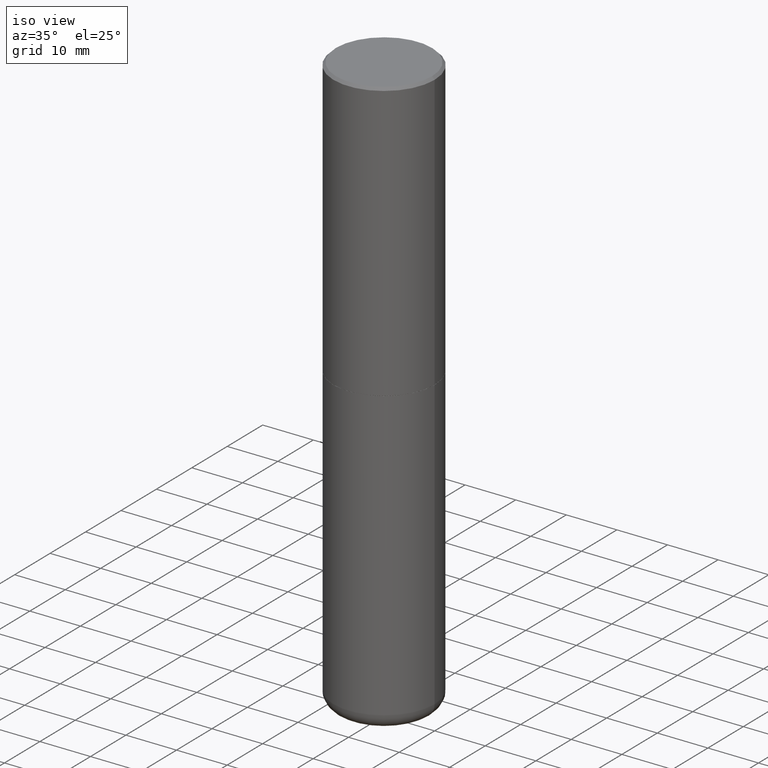
[diagram: clean part render]
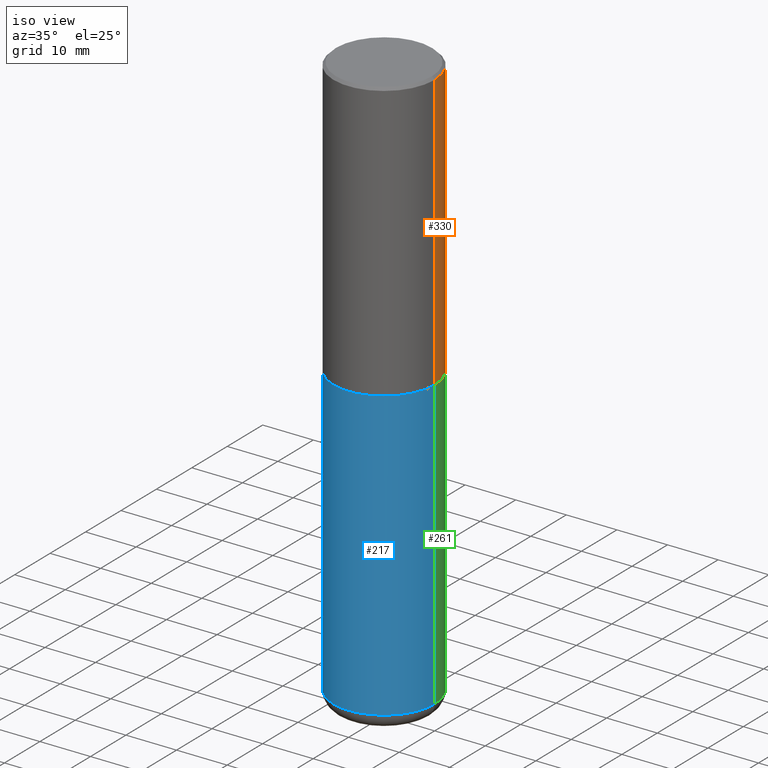
[diagram: same view with three faces highlighted in distinct colors, each labeled with its STEP entity id]
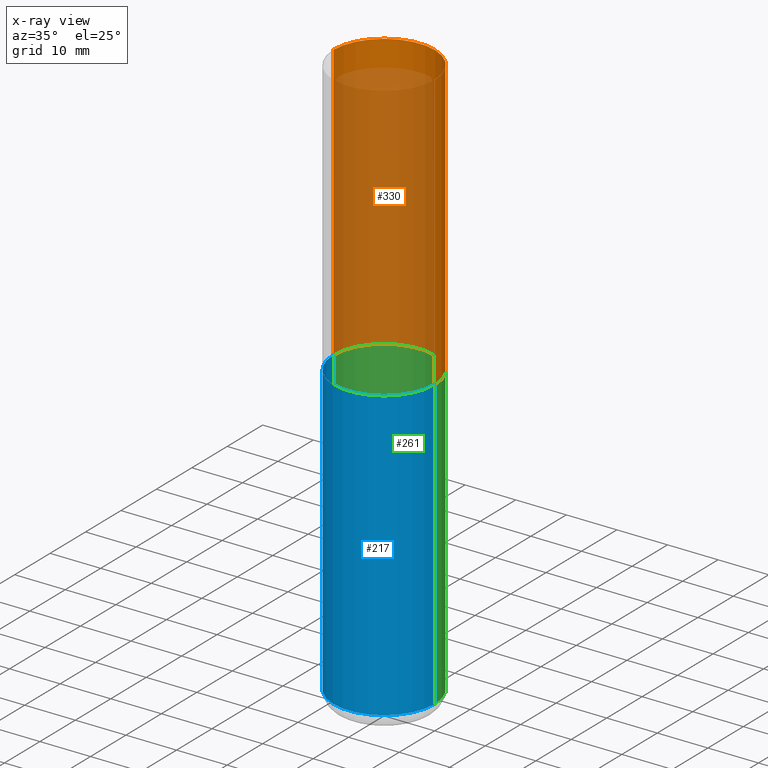
[diagram: x-ray of the same camera — body ghosted, the three highlighted faces saturated]
A machine part, iso view with three faces highlighted in distinct colors.
The next image is the same camera in x-ray (body ghosted, the three faces saturated) — at least one of them is partly hidden behind the body in this view.
Their STEP definitions:

[orange] entity #330 — the highlighted cylindrical surface (partial cylindrical patch) has radius 10 mm, axis along (-0, 0, 1).
#4 = ORIENTED_EDGE ( 'NONE', *, *, #326, .T. ) ;
#5 = EDGE_CURVE ( 'NONE', #162, #307, #29, .T. ) ;
#19 = VERTEX_POINT ( 'NONE', #332 ) ;
#29 = LINE ( 'NONE', #219, #386 ) ;
#48 = CARTESIAN_POINT ( 'NONE',  ( 4.890937612370294178E-31, -6.982962677686321191E-17, -0.02000000000000008715 ) ) ;
#53 = AXIS2_PLACEMENT_3D ( 'NONE', #137, #142, #274 ) ;
#63 = CARTESIAN_POINT ( 'NONE',  ( 0.3937000000000002720, -1.030615461599718763E-14, -2.164399999999999658 ) ) ;
#66 = CARTESIAN_POINT ( 'NONE',  ( 5.292972684107107621E-29, -7.556962209792102838E-15, -2.164399999999999658 ) ) ;
#137 = CARTESIAN_POINT ( 'NONE',  ( 0.000000000000000000, 0.000000000000000000, 0.000000000000000000 ) ) ;
#140 = EDGE_LOOP ( 'NONE', ( #4, #365, #396, #184 ) ) ;
#142 = DIRECTION ( 'NONE',  ( -2.445468806185136597E-29, 3.491481338843145583E-15, 1.000000000000000000 ) ) ;
#154 = DIRECTION ( 'NONE',  ( 1.000000000000000000, -6.982962677686266711E-15, 0.000000000000000000 ) ) ;
#162 = VERTEX_POINT ( 'NONE', #63 ) ;
#166 = DIRECTION ( 'NONE',  ( 1.000000000000000000, -6.982962677686269077E-15, 0.000000000000000000 ) ) ;
#168 = FACE_OUTER_BOUND ( 'NONE', #140, .T. ) ;
#177 = DIRECTION ( 'NONE',  ( -2.445468806185136597E-29, 3.491481338843145583E-15, 1.000000000000000000 ) ) ;
#178 = DIRECTION ( 'NONE',  ( -2.445468806185136597E-29, 3.491481338843145583E-15, 1.000000000000000000 ) ) ;
#184 = ORIENTED_EDGE ( 'NONE', *, *, #5, .F. ) ;
#188 = CARTESIAN_POINT ( 'NONE',  ( 0.3937000000000001054, -2.770807688499516128E-15, -0.02000000000000008715 ) ) ;
#210 = CIRCLE ( 'NONE', #379, 0.3937000000000001054 ) ;
#219 = CARTESIAN_POINT ( 'NONE',  ( 0.3937000000000002164, -2.749192406205084794E-15, 1.919750796630861012E-29 ) ) ;
#222 = CARTESIAN_POINT ( 'NONE',  ( -0.3937000000000002164, 2.797406750687515970E-15, -1.936584745033357576E-29 ) ) ;
#226 = EDGE_CURVE ( 'NONE', #388, #19, #403, .T. ) ;
#229 = CIRCLE ( 'NONE', #257, 0.3937000000000002720 ) ;
#252 = CARTESIAN_POINT ( 'NONE',  ( -0.3937000000000002720, -1.015989167596965718E-15, -2.164399999999999658 ) ) ;
#257 = AXIS2_PLACEMENT_3D ( 'NONE', #66, #178, #166 ) ;
#274 = DIRECTION ( 'NONE',  ( 1.000000000000000000, -6.982962677686266711E-15, 4.876176775795935793E-29 ) ) ;
#293 = DIRECTION ( 'NONE',  ( -2.445468806185136877E-29, 3.491481338843145188E-15, 1.000000000000000000 ) ) ;
#303 = CYLINDRICAL_SURFACE ( 'NONE', #53, 0.3937000000000002164 ) ;
#307 = VERTEX_POINT ( 'NONE', #188 ) ;
#326 = EDGE_CURVE ( 'NONE', #162, #388, #229, .T. ) ;
#330 = ADVANCED_FACE ( 'NONE', ( #168 ), #303, .T. ) ;
#332 = CARTESIAN_POINT ( 'NONE',  ( -0.3937000000000001054, 2.679362779428220707E-15, -0.02000000000000008715 ) ) ;
#365 = ORIENTED_EDGE ( 'NONE', *, *, #226, .T. ) ;
#379 = AXIS2_PLACEMENT_3D ( 'NONE', #48, #177, #154 ) ;
#384 = EDGE_CURVE ( 'NONE', #307, #19, #210, .T. ) ;
#386 = VECTOR ( 'NONE', #397, 39.37007874015748143 ) ;
#388 = VERTEX_POINT ( 'NONE', #252 ) ;
#396 = ORIENTED_EDGE ( 'NONE', *, *, #384, .F. ) ;
#397 = DIRECTION ( 'NONE',  ( -2.445468806185136877E-29, 3.491481338843145188E-15, 1.000000000000000000 ) ) ;
#403 = LINE ( 'NONE', #222, #409 ) ;
#409 = VECTOR ( 'NONE', #293, 39.37007874015748143 ) ;

[blue] entity #217 — the highlighted cylindrical surface (partial cylindrical patch) has radius 10 mm, axis along (-0, 0, 1).
#41 = DIRECTION ( 'NONE',  ( -2.445468806185136597E-29, 3.491481338843145583E-15, 1.000000000000000000 ) ) ;
#51 = CYLINDRICAL_SURFACE ( 'NONE', #275, 0.3936999999999999389 ) ;
#65 = ORIENTED_EDGE ( 'NONE', *, *, #272, .T. ) ;
#74 = FACE_OUTER_BOUND ( 'NONE', #348, .T. ) ;
#81 = EDGE_CURVE ( 'NONE', #289, #325, #213, .T. ) ;
#95 = CARTESIAN_POINT ( 'NONE',  ( -0.3937000000000000499, -8.680663576692383017E-15, -2.165399999999999547 ) ) ;
#96 = EDGE_CURVE ( 'NONE', #325, #306, #296, .T. ) ;
#101 = CIRCLE ( 'NONE', #243, 0.3936999999999999389 ) ;
#107 = DIRECTION ( 'NONE',  ( -2.445468806185136877E-29, 3.491481338843145188E-15, 1.000000000000000000 ) ) ;
#125 = ORIENTED_EDGE ( 'NONE', *, *, #81, .F. ) ;
#128 = CARTESIAN_POINT ( 'NONE',  ( 5.295418152913293224E-29, -7.560453691130945845E-15, -2.165399999999999547 ) ) ;
#132 = CARTESIAN_POINT ( 'NONE',  ( 0.000000000000000000, 0.000000000000000000, 0.000000000000000000 ) ) ;
#136 = DIRECTION ( 'NONE',  ( 1.000000000000000000, -6.982962677686265133E-15, 0.000000000000000000 ) ) ;
#164 = VECTOR ( 'NONE', #107, 39.37007874015748143 ) ;
#174 = VECTOR ( 'NONE', #254, 39.37007874015748143 ) ;
#206 = CARTESIAN_POINT ( 'NONE',  ( 0.3936999999999998279, -1.814487936983393140E-14, -4.409499999999999531 ) ) ;
#209 = CARTESIAN_POINT ( 'NONE',  ( 1.078329470087335798E-28, -1.539568696362884818E-14, -4.409499999999999531 ) ) ;
#213 = LINE ( 'NONE', #244, #174 ) ;
#215 = VERTEX_POINT ( 'NONE', #206 ) ;
#217 = ADVANCED_FACE ( 'NONE', ( #74 ), #51, .T. ) ;
#235 = LINE ( 'NONE', #344, #164 ) ;
#243 = AXIS2_PLACEMENT_3D ( 'NONE', #209, #41, #136 ) ;
#244 = CARTESIAN_POINT ( 'NONE',  ( -0.3936999999999999389, 2.797406750687513998E-15, -1.936584745033356455E-29 ) ) ;
#247 = CARTESIAN_POINT ( 'NONE',  ( 0.3937000000000000499, -1.030964609733602906E-14, -2.165399999999999547 ) ) ;
#254 = DIRECTION ( 'NONE',  ( -2.445468806185136877E-29, 3.491481338843145188E-15, 1.000000000000000000 ) ) ;
#258 = DIRECTION ( 'NONE',  ( 1.000000000000000000, -6.982962677686266711E-15, 4.876176775795935793E-29 ) ) ;
#263 = DIRECTION ( 'NONE',  ( -2.445468806185136597E-29, 3.491481338843145583E-15, 1.000000000000000000 ) ) ;
#272 = EDGE_CURVE ( 'NONE', #289, #215, #101, .T. ) ;
#275 = AXIS2_PLACEMENT_3D ( 'NONE', #132, #263, #258 ) ;
#281 = AXIS2_PLACEMENT_3D ( 'NONE', #128, #362, #328 ) ;
#289 = VERTEX_POINT ( 'NONE', #411 ) ;
#296 = CIRCLE ( 'NONE', #281, 0.3937000000000000499 ) ;
#306 = VERTEX_POINT ( 'NONE', #247 ) ;
#325 = VERTEX_POINT ( 'NONE', #95 ) ;
#328 = DIRECTION ( 'NONE',  ( 1.000000000000000000, -6.982962677686265133E-15, 0.000000000000000000 ) ) ;
#340 = ORIENTED_EDGE ( 'NONE', *, *, #96, .F. ) ;
#344 = CARTESIAN_POINT ( 'NONE',  ( 0.3936999999999999389, -2.749192406205082822E-15, 1.919750796630859611E-29 ) ) ;
#348 = EDGE_LOOP ( 'NONE', ( #125, #65, #357, #340 ) ) ;
#357 = ORIENTED_EDGE ( 'NONE', *, *, #377, .T. ) ;
#362 = DIRECTION ( 'NONE',  ( -2.445468806185136597E-29, 3.491481338843145583E-15, 1.000000000000000000 ) ) ;
#377 = EDGE_CURVE ( 'NONE', #215, #306, #235, .T. ) ;
#411 = CARTESIAN_POINT ( 'NONE',  ( -0.3936999999999998279, -1.259828021294133576E-14, -4.409499999999999531 ) ) ;

[green] entity #261 — the highlighted cylindrical surface (partial cylindrical patch) has radius 10 mm, axis along (-0, 0, 1).
#2 = AXIS2_PLACEMENT_3D ( 'NONE', #32, #370, #250 ) ;
#12 = DIRECTION ( 'NONE',  ( -2.445468806185136597E-29, 3.491481338843145583E-15, 1.000000000000000000 ) ) ;
#32 = CARTESIAN_POINT ( 'NONE',  ( 5.295418152913293224E-29, -7.560453691130945845E-15, -2.165399999999999547 ) ) ;
#81 = EDGE_CURVE ( 'NONE', #289, #325, #213, .T. ) ;
#95 = CARTESIAN_POINT ( 'NONE',  ( -0.3937000000000000499, -8.680663576692383017E-15, -2.165399999999999547 ) ) ;
#107 = DIRECTION ( 'NONE',  ( -2.445468806185136877E-29, 3.491481338843145188E-15, 1.000000000000000000 ) ) ;
#112 = ORIENTED_EDGE ( 'NONE', *, *, #114, .F. ) ;
#114 = EDGE_CURVE ( 'NONE', #306, #325, #143, .T. ) ;
#124 = AXIS2_PLACEMENT_3D ( 'NONE', #349, #276, #418 ) ;
#143 = CIRCLE ( 'NONE', #2, 0.3937000000000000499 ) ;
#164 = VECTOR ( 'NONE', #107, 39.37007874015748143 ) ;
#174 = VECTOR ( 'NONE', #254, 39.37007874015748143 ) ;
#187 = ORIENTED_EDGE ( 'NONE', *, *, #236, .T. ) ;
#206 = CARTESIAN_POINT ( 'NONE',  ( 0.3936999999999998279, -1.814487936983393140E-14, -4.409499999999999531 ) ) ;
#213 = LINE ( 'NONE', #244, #174 ) ;
#215 = VERTEX_POINT ( 'NONE', #206 ) ;
#225 = ORIENTED_EDGE ( 'NONE', *, *, #81, .T. ) ;
#235 = LINE ( 'NONE', #344, #164 ) ;
#236 = EDGE_CURVE ( 'NONE', #215, #289, #391, .T. ) ;
#244 = CARTESIAN_POINT ( 'NONE',  ( -0.3936999999999999389, 2.797406750687513998E-15, -1.936584745033356455E-29 ) ) ;
#247 = CARTESIAN_POINT ( 'NONE',  ( 0.3937000000000000499, -1.030964609733602906E-14, -2.165399999999999547 ) ) ;
#250 = DIRECTION ( 'NONE',  ( 1.000000000000000000, -6.982962677686265133E-15, 0.000000000000000000 ) ) ;
#254 = DIRECTION ( 'NONE',  ( -2.445468806185136877E-29, 3.491481338843145188E-15, 1.000000000000000000 ) ) ;
#261 = ADVANCED_FACE ( 'NONE', ( #366 ), #312, .T. ) ;
#266 = CARTESIAN_POINT ( 'NONE',  ( 1.078329470087335798E-28, -1.539568696362884818E-14, -4.409499999999999531 ) ) ;
#270 = ORIENTED_EDGE ( 'NONE', *, *, #377, .F. ) ;
#276 = DIRECTION ( 'NONE',  ( -2.445468806185136597E-29, 3.491481338843145583E-15, 1.000000000000000000 ) ) ;
#279 = AXIS2_PLACEMENT_3D ( 'NONE', #266, #12, #369 ) ;
#289 = VERTEX_POINT ( 'NONE', #411 ) ;
#306 = VERTEX_POINT ( 'NONE', #247 ) ;
#312 = CYLINDRICAL_SURFACE ( 'NONE', #124, 0.3936999999999999389 ) ;
#325 = VERTEX_POINT ( 'NONE', #95 ) ;
#344 = CARTESIAN_POINT ( 'NONE',  ( 0.3936999999999999389, -2.749192406205082822E-15, 1.919750796630859611E-29 ) ) ;
#349 = CARTESIAN_POINT ( 'NONE',  ( 0.000000000000000000, 0.000000000000000000, 0.000000000000000000 ) ) ;
#366 = FACE_OUTER_BOUND ( 'NONE', #378, .T. ) ;
#369 = DIRECTION ( 'NONE',  ( 1.000000000000000000, -6.982962677686265133E-15, 0.000000000000000000 ) ) ;
#370 = DIRECTION ( 'NONE',  ( -2.445468806185136597E-29, 3.491481338843145583E-15, 1.000000000000000000 ) ) ;
#377 = EDGE_CURVE ( 'NONE', #215, #306, #235, .T. ) ;
#378 = EDGE_LOOP ( 'NONE', ( #187, #225, #112, #270 ) ) ;
#391 = CIRCLE ( 'NONE', #279, 0.3936999999999999389 ) ;
#411 = CARTESIAN_POINT ( 'NONE',  ( -0.3936999999999998279, -1.259828021294133576E-14, -4.409499999999999531 ) ) ;
#418 = DIRECTION ( 'NONE',  ( 1.000000000000000000, -6.982962677686266711E-15, 4.876176775795935793E-29 ) ) ;